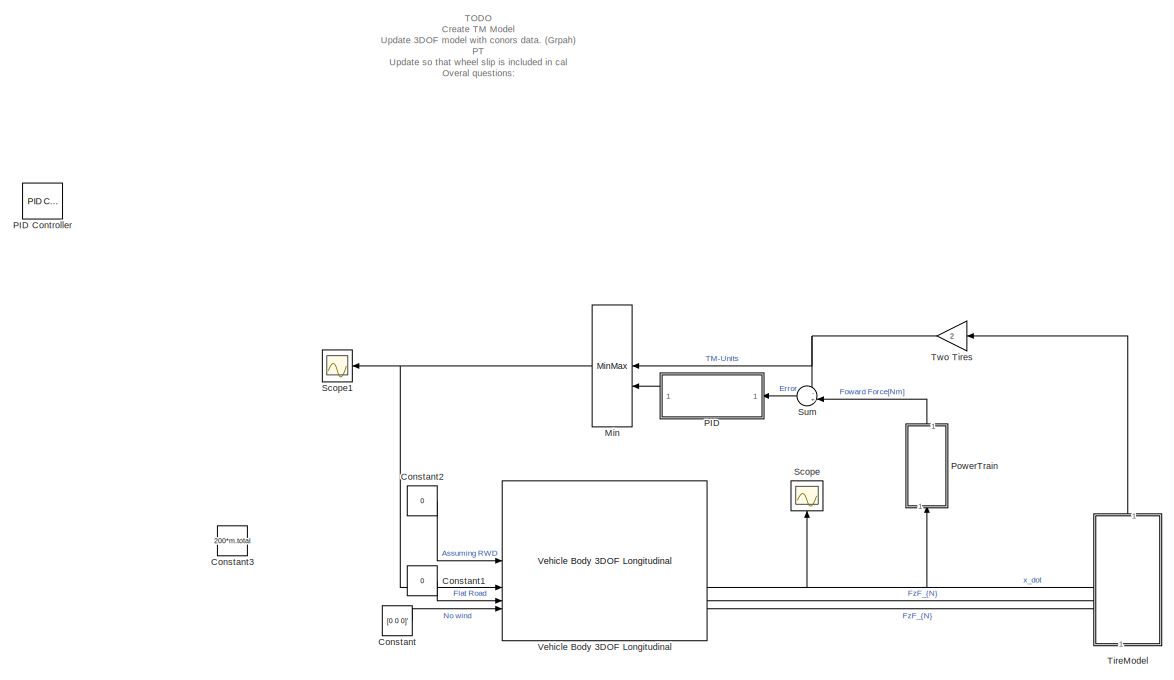
[diagram: root canvas - part 1/2, center side, full height]
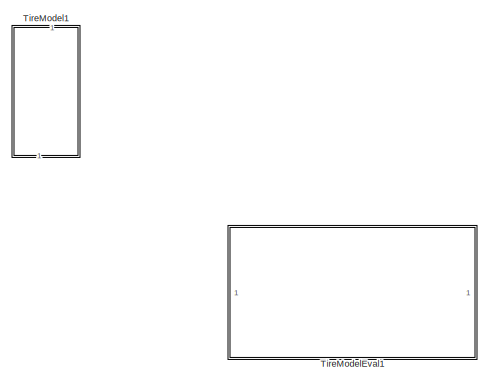
[diagram: root canvas - part 2/2, bottom right region]
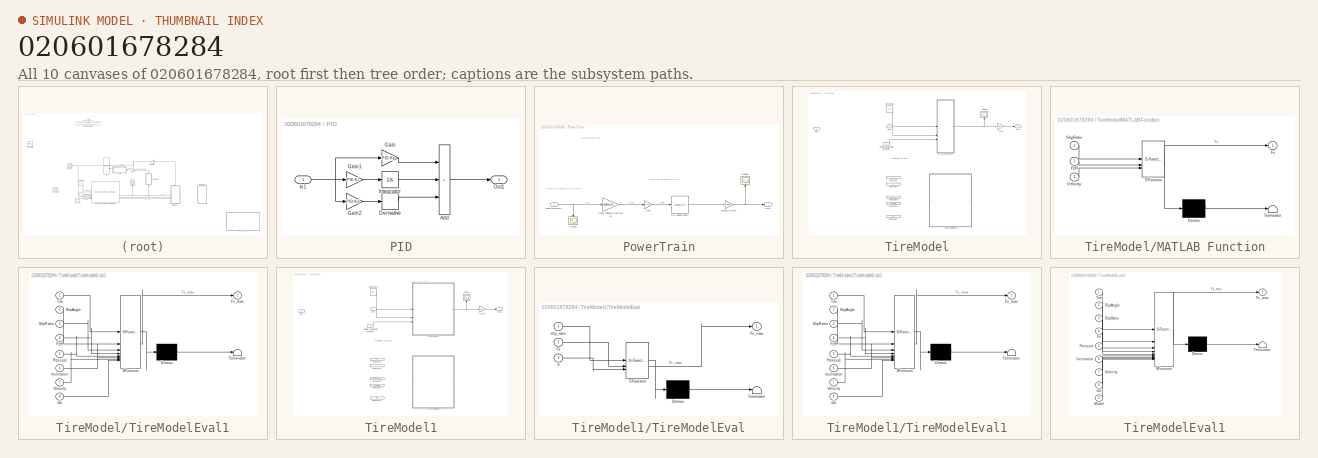
[diagram: thumbnail index - all 10 canvases of the model, root first then tree order]
MODEL slx_020601678284
KIND model
CONFIG AbsTol = auto
CONFIG EnableMultiTasking = off
CONFIG FixedStep = auto
CONFIG MaxStep = auto
CONFIG MinStep = auto
CONFIG PreLoadFcn = Tire = coder.load('Hoosier_R25B_16x75-10x7.mat', 'Tire');\n
CONFIG RelTol = 1e-3
CONFIG SampleTimeConstraint = Unconstrained
CONFIG SolverName = VariableStepAuto
CONFIG StartTime = 0.0
CONFIG StopTime = 20
BLOCK [Constant] Constant
  Value = [0 0 0]'
  VectorParams1D = off
BLOCK [Constant] Constant1
  Value = 0
BLOCK [Constant] Constant2
  Value = 0
BLOCK [Constant] Constant3
  Value = 200*m.total
BLOCK [MinMax] Min
  Inputs = 2
  NameLocation = top
BLOCK [SubSystem] PID
  NameLocation = top
BLOCK [Reference] PID Controller  REF=slpidlib/PID Controller
  Commented = on
  LibrarySourceBlock = simulink/Continuous/PID Controller
  NameLocation = top
  SourceBlock = slpidlib/PID Controller
  SourceType = PID 1dof
BLOCK [Sum] PID/Add
  IconShape = rectangular
  Inputs = +++
BLOCK [Derivative] PID/Derivative
BLOCK [Gain] PID/Gain
  Gain = PID.Kp
BLOCK [Gain] PID/Gain1
  Gain = PID.Ki
BLOCK [Gain] PID/Gain2
  Gain = PID.Kd
BLOCK [Inport] PID/In1
BLOCK [Integrator] PID/Integrator
BLOCK [Outport] PID/Out1
BLOCK [SubSystem] PowerTrain
  NameLocation = right
BLOCK [Lookup_n-D] PowerTrain/1-D Lookup Table
  BreakpointsForDimension1 = torque_vs_RPM_breakpoints
  ExtrapMethod = Clip
  InputPortMap = u0
  InternalRulePriority = Speed
  NumberOfTableDimensions = 1
  RndMeth = Simplest
  Table = torque_vs_RPM_table
  UseLastTableValue = on
BLOCK [Gain] PowerTrain/Gain
  Gain = 1/60
BLOCK [Outport] PowerTrain/Out1
BLOCK [Scope] PowerTrain/Scope1
  Floating = off
  NameLocation = left
  NumInputPorts = 1
  ScopeSpecificationString = Simulink.scopes.TimeScopeBlockCfg('CurrentConfiguration', extmgr.ConfigurationSet(extmgr.Configuration('Core','General UI',true),extmgr.Configuration('Core','Source UI',true),extmgr.Configuration('Sources','WiredSimulink',true,'DataLoggingVariableName','ScopeData2'),extmgr.Configuration('Visuals','Time Domain',true,'SerializedDisplays',{struct('MinYLimReal','-31.05691','MaxYLimReal','279.51221','Y...<+1461ch>
BLOCK [Scope] PowerTrain/Scope2
  Floating = off
  NameLocation = right
  NumInputPorts = 1
  ScopeSpecificationString = Simulink.scopes.TimeScopeBlockCfg('CurrentConfiguration', extmgr.ConfigurationSet(extmgr.Configuration('Core','General UI',true),extmgr.Configuration('Core','Source UI',true),extmgr.Configuration('Sources','WiredSimulink',true,'DataLoggingVariableName','ScopeData4'),extmgr.Configuration('Visuals','Time Domain',true,'SerializedDisplays',{struct('MinYLimReal','333.07087','MaxYLimReal','533.07087','Y...<+1777ch>
BLOCK [Gain] PowerTrain/linear speed//circumfrence
  Gain = 1/wheel.circumfrence
BLOCK [Gain] PowerTrain/torque to force
  Gain = 1/(wheel.diameter*2)
BLOCK [Inport] PowerTrain/vehicle_velocity
BLOCK [Scope] Scope
  Floating = off
  NameLocation = right
  NumInputPorts = 1
  ScopeSpecificationString = Simulink.scopes.TimeScopeBlockCfg('CurrentConfiguration', extmgr.ConfigurationSet(extmgr.Configuration('Core','General UI',true),extmgr.Configuration('Core','Source UI',true),extmgr.Configuration('Sources','WiredSimulink',true),extmgr.Configuration('Visuals','Time Domain',true,'SerializedDisplays',{struct('MinYLimReal','-31.05691','MaxYLimReal','279.51221','YLabelReal','','MinYLimMag','0.00000','M...<+1712ch>
BLOCK [Scope] Scope1
  Floating = off
  NameLocation = top
  NumInputPorts = 1
  ScopeSpecificationString = Simulink.scopes.TimeScopeBlockCfg('CurrentConfiguration', extmgr.ConfigurationSet(extmgr.Configuration('Core','General UI',true),extmgr.Configuration('Core','Source UI',true),extmgr.Configuration('Sources','WiredSimulink',true,'DataLoggingVariableName','ScopeData3'),extmgr.Configuration('Visuals','Time Domain',true,'SerializedDisplays',{struct('MinYLimReal','-10','MaxYLimReal','10','YLabelReal',''...<+849ch>
BLOCK [Sum] Sum
  Inputs = -+|
  NameLocation = top
BLOCK [SubSystem] TireModel
  NameLocation = right
  PortSchema = {"entries":[{"content":{"sides":[{"content":{},"type":"ConnectorPlacement.EquallySpacedRectSide","uuid":"d4bb879a-aa81-4ea3-92ac-3983b0597440"},{"content":{"connectorIds":["Out1"],"side":"RIGHT"},"type":"ConnectorPlacement.EquallySpacedRectSide","uuid":"22ca24d5-9db3-466e-aaa4-c38196519f13"},{"content":{"connectorIds":["In1","In2","In3"],"side":"TOP"},"type":"ConnectorPlacement.EquallySpacedRectSi...<+235ch>
BLOCK [Constant] TireModel/Constant
  Commented = on
BLOCK [Constant] TireModel/Constant1
  Commented = on
BLOCK [Constant] TireModel/Constant2
  Commented = on
  Value = Pressure
BLOCK [Constant] TireModel/Constant3
  Commented = on
  Value = Inclination
BLOCK [Constant] TireModel/Constant4
  Commented = on
  Value = Idx
BLOCK [Constant] TireModel/Constant5
  Value = 0.1
BLOCK [Inport] TireModel/FzF
  Port = 2
BLOCK [Inport] TireModel/FzR
  NameLocation = left
BLOCK [Gain] TireModel/Gain
  Gain = 1/(i_g*drive_train_eff)
BLOCK [SubSystem] TireModel/MATLAB Function
  ErrorFcn = Stateflow.Translate.translate
  PermitHierarchicalResolution = ExplicitOnly
  SFBlockType = MATLAB Function
  TreatAsAtomicUnit = on
BLOCK [Demux] TireModel/MATLAB Function/ Demux 
  Outputs = 1
BLOCK [S-Function] TireModel/MATLAB Function/ SFunction 
  EnableBusSupport = on
  FunctionName = sf_sfun
  PortCounts = [3 2]
  SFcnIsStateOwnerBlock = off
  SFunctionDeploymentMode = off
  Tag = Stateflow S-Function 2
BLOCK [Terminator] TireModel/MATLAB Function/ Terminator 
BLOCK [Outport] TireModel/MATLAB Function/Fx
BLOCK [Inport] TireModel/MATLAB Function/FzR
  Port = 2
BLOCK [Inport] TireModel/MATLAB Function/SlipRatio
BLOCK [Inport] TireModel/MATLAB Function/Velocity
  Port = 3
BLOCK [Outport] TireModel/Out1
BLOCK [Scope] TireModel/Scope
  Floating = off
  NameLocation = right
  NumInputPorts = 1
  ScopeSpecificationString = Simulink.scopes.TimeScopeBlockCfg('CurrentConfiguration', extmgr.ConfigurationSet(extmgr.Configuration('Core','General UI',true),extmgr.Configuration('Core','Source UI',true),extmgr.Configuration('Sources','WiredSimulink',true,'DataLoggingVariableName','ScopeData1'),extmgr.Configuration('Visuals','Time Domain',true),extmgr.Configuration('Tools','Plot Navigation',true),extmgr.Configuration('Tools',...<+40ch>
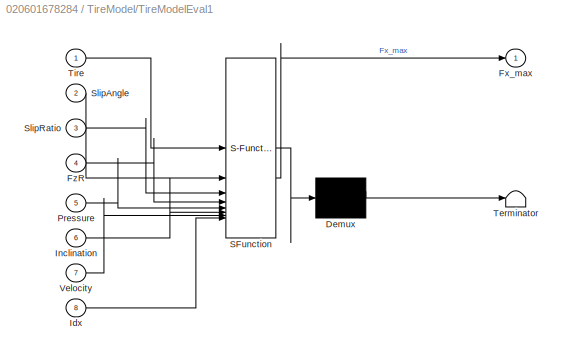
BLOCK [SubSystem] TireModel/TireModelEval1
  Commented = on
  ErrorFcn = Stateflow.Translate.translate
  PermitHierarchicalResolution = ExplicitOnly
  SFBlockType = MATLAB Function
  TreatAsAtomicUnit = on
BLOCK [Demux] TireModel/TireModelEval1/ Demux 
  Outputs = 1
BLOCK [S-Function] TireModel/TireModelEval1/ SFunction 
  EnableBusSupport = on
  FunctionName = sf_sfun
  PortCounts = [8 2]
  SFcnIsStateOwnerBlock = off
  SFunctionDeploymentMode = off
  Tag = Stateflow S-Function 1
BLOCK [Terminator] TireModel/TireModelEval1/ Terminator 
BLOCK [Outport] TireModel/TireModelEval1/Fx_max
BLOCK [Inport] TireModel/TireModelEval1/FzR
  Port = 4
BLOCK [Inport] TireModel/TireModelEval1/Idx
  Port = 8
BLOCK [Inport] TireModel/TireModelEval1/Inclination
  Port = 6
BLOCK [Inport] TireModel/TireModelEval1/Pressure
  Port = 5
BLOCK [Inport] TireModel/TireModelEval1/SlipAngle
  Port = 2
BLOCK [Inport] TireModel/TireModelEval1/SlipRatio
  Port = 3
BLOCK [Inport] TireModel/TireModelEval1/Tire
BLOCK [Inport] TireModel/TireModelEval1/Velocity
  Port = 7
BLOCK [Inport] TireModel/Vehicle_Longitudinal_Velocity
  NameLocation = left
  Port = 3
BLOCK [SubSystem] TireModel1
  Commented = on
  NameLocation = right
  PortSchema = {"entries":[{"content":{"sides":[{"content":{},"type":"ConnectorPlacement.EquallySpacedRectSide","uuid":"d4bb879a-aa81-4ea3-92ac-3983b0597440"},{"content":{"connectorIds":["Out1"],"side":"RIGHT"},"type":"ConnectorPlacement.EquallySpacedRectSide","uuid":"22ca24d5-9db3-466e-aaa4-c38196519f13"},{"content":{"connectorIds":["In1","In2","In3"],"side":"TOP"},"type":"ConnectorPlacement.EquallySpacedRectSi...<+235ch>
BLOCK [Constant] TireModel1/Constant
  Commented = on
BLOCK [Constant] TireModel1/Constant1
  Commented = on
BLOCK [Constant] TireModel1/Constant2
  Commented = on
  Value = Pressure
BLOCK [Constant] TireModel1/Constant3
  Commented = on
  Value = Inclination
BLOCK [Constant] TireModel1/Constant4
  Commented = on
  Value = Idx
BLOCK [Constant] TireModel1/Constant5
  Value = 0.1
BLOCK [Inport] TireModel1/FzF
  Port = 2
BLOCK [Inport] TireModel1/FzR
  NameLocation = left
BLOCK [Gain] TireModel1/Gain
  Gain = 1/(i_g*drive_train_eff)
BLOCK [Outport] TireModel1/Out1
BLOCK [Scope] TireModel1/Scope
  Floating = off
  NameLocation = right
  NumInputPorts = 1
  ScopeSpecificationString = Simulink.scopes.TimeScopeBlockCfg('CurrentConfiguration', extmgr.ConfigurationSet(extmgr.Configuration('Core','General UI',true),extmgr.Configuration('Core','Source UI',true),extmgr.Configuration('Sources','WiredSimulink',true,'DataLoggingVariableName','ScopeData1'),extmgr.Configuration('Visuals','Time Domain',true),extmgr.Configuration('Tools','Plot Navigation',true),extmgr.Configuration('Tools',...<+40ch>
BLOCK [SubSystem] TireModel1/TireModelEval
  ErrorFcn = Stateflow.Translate.translate
  PermitHierarchicalResolution = ExplicitOnly
  SFBlockType = MATLAB Function
  TreatAsAtomicUnit = on
BLOCK [Demux] TireModel1/TireModelEval/ Demux 
  Outputs = 1
BLOCK [S-Function] TireModel1/TireModelEval/ SFunction 
  EnableBusSupport = on
  FunctionName = sf_sfun
  PortCounts = [3 2]
  SFcnIsStateOwnerBlock = off
  SFunctionDeploymentMode = off
  Tag = Stateflow S-Function 4
BLOCK [Terminator] TireModel1/TireModelEval/ Terminator 
BLOCK [Outport] TireModel1/TireModelEval/Fx_max
BLOCK [Inport] TireModel1/TireModelEval/Fz
  Port = 2
BLOCK [Inport] TireModel1/TireModelEval/V
  Port = 3
BLOCK [Inport] TireModel1/TireModelEval/slip_ratio
BLOCK [SubSystem] TireModel1/TireModelEval1
  Commented = on
  ErrorFcn = Stateflow.Translate.translate
  PermitHierarchicalResolution = ExplicitOnly
  SFBlockType = MATLAB Function
  TreatAsAtomicUnit = on
BLOCK [Demux] TireModel1/TireModelEval1/ Demux 
  Outputs = 1
BLOCK [S-Function] TireModel1/TireModelEval1/ SFunction 
  EnableBusSupport = on
  FunctionName = sf_sfun
  PortCounts = [8 2]
  SFcnIsStateOwnerBlock = off
  SFunctionDeploymentMode = off
  Tag = Stateflow S-Function 5
BLOCK [Terminator] TireModel1/TireModelEval1/ Terminator 
BLOCK [Outport] TireModel1/TireModelEval1/Fx_max
BLOCK [Inport] TireModel1/TireModelEval1/FzR
  Port = 4
BLOCK [Inport] TireModel1/TireModelEval1/Idx
  Port = 8
BLOCK [Inport] TireModel1/TireModelEval1/Inclination
  Port = 6
BLOCK [Inport] TireModel1/TireModelEval1/Pressure
  Port = 5
BLOCK [Inport] TireModel1/TireModelEval1/SlipAngle
  Port = 2
BLOCK [Inport] TireModel1/TireModelEval1/SlipRatio
  Port = 3
BLOCK [Inport] TireModel1/TireModelEval1/Tire
BLOCK [Inport] TireModel1/TireModelEval1/Velocity
  Port = 7
BLOCK [Inport] TireModel1/Vehicle_Longitudinal_Velocity
  NameLocation = left
  Port = 3
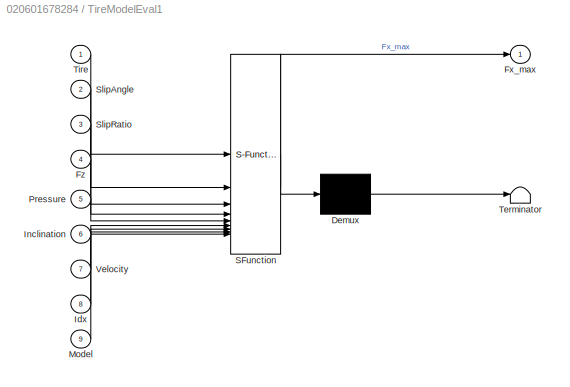
BLOCK [SubSystem] TireModelEval1
  Commented = on
  ErrorFcn = Stateflow.Translate.translate
  PermitHierarchicalResolution = ExplicitOnly
  SFBlockType = MATLAB Function
  TreatAsAtomicUnit = on
BLOCK [Demux] TireModelEval1/ Demux 
  Outputs = 1
BLOCK [S-Function] TireModelEval1/ SFunction 
  EnableBusSupport = on
  FunctionName = sf_sfun
  PortCounts = [9 2]
  SFcnIsStateOwnerBlock = off
  SFunctionDeploymentMode = off
  Tag = Stateflow S-Function 3
BLOCK [Terminator] TireModelEval1/ Terminator 
BLOCK [Outport] TireModelEval1/Fx_max
BLOCK [Inport] TireModelEval1/Fz
  Port = 4
BLOCK [Inport] TireModelEval1/Idx
  Port = 8
BLOCK [Inport] TireModelEval1/Inclination
  Port = 6
BLOCK [Inport] TireModelEval1/Model
  Port = 9
BLOCK [Inport] TireModelEval1/Pressure
  Port = 5
BLOCK [Inport] TireModelEval1/SlipAngle
  Port = 2
BLOCK [Inport] TireModelEval1/SlipRatio
  Port = 3
BLOCK [Inport] TireModelEval1/Tire
BLOCK [Inport] TireModelEval1/Velocity
  Port = 7
BLOCK [Gain] Two Tires
  Gain = 2
  NameLocation = top
BLOCK [Reference] Vehicle Body 3DOF Longitudinal  REF=autolibshared/Vehicle Body 3DOF Longitudinal
  LibrarySourceBlock = vehdynlibeom/Vehicle Body 3DOF Longitudinal
  SourceBlock = autolibshared/Vehicle Body 3DOF Longitudinal
  SourceType = Vehicle Body 3DOF Longitudinal
ANNOTATION (root): TODO Create TM Model Update 3DOF model with conors data. (Grpah) PT Update so that wheel slip is included in cal Overal questions: Since we are just aming for maximal force applied, does this model still work? Or do we want to model for a targeted veloicty Its 3 am quesiton: why do we have a PID and not just take min of TM vs PT Figure out unit conversions so that the min(PT,TM) makes sense Rescal...<+171ch>
ANNOTATION PowerTrain: Not using slip yet
ANNOTATION PowerTrain: RPM TO TORQUE CALC
ANNOTATION PowerTrain: VHEICLE WHEEL SECTION
ANNOTATION TireModel: Preloading Tire Data
ANNOTATION TireModel1: Preloading Tire Data
ANNOTATION TireModel1: whose gonna know
LINE Constant1:1 -> Vehicle Body 3DOF Longitudinal:3
LINE Constant2:1 -> Vehicle Body 3DOF Longitudinal:1
LINE Constant:1 -> Vehicle Body 3DOF Longitudinal:4
NET Min:1 -> Scope1:1, Vehicle Body 3DOF Longitudinal:2
LINE PID/Add:1 -> PID/Out1:1
LINE PID/Derivative:1 -> PID/Add:3
LINE PID/Gain1:1 -> PID/Integrator:1
LINE PID/Gain2:1 -> PID/Derivative:1
LINE PID/Gain:1 -> PID/Add:1
NET PID/In1:1 -> PID/Gain1:1, PID/Gain2:1, PID/Gain:1
LINE PID/Integrator:1 -> PID/Add:2
LINE PID:1 -> Min:2
LINE PowerTrain/1-D Lookup Table:1 -> PowerTrain/torque to force:1
LINE PowerTrain/Gain:1 -> PowerTrain/1-D Lookup Table:1
LINE PowerTrain/linear speed//circumfrence:1 -> PowerTrain/Gain:1
NET PowerTrain/torque to force:1 -> PowerTrain/Out1:1, PowerTrain/Scope2:1
NET PowerTrain/vehicle_velocity:1 -> PowerTrain/Scope1:1, PowerTrain/linear speed//circumfrence:1
LINE PowerTrain:1 -> Sum:2
LINE Sum:1 -> PID:1
LINE TireModel/Constant5:1 -> TireModel/MATLAB Function:1
LINE TireModel/FzR:1 -> TireModel/MATLAB Function:2
LINE TireModel/Gain:1 -> TireModel/Out1:1
NET TireModel/MATLAB Function:1 -> TireModel/Gain:1, TireModel/Scope:1
LINE TireModel/Vehicle_Longitudinal_Velocity:1 -> TireModel/MATLAB Function:3
LINE TireModel1/Constant5:1 -> TireModel1/TireModelEval:1
LINE TireModel1/FzR:1 -> TireModel1/TireModelEval:2
LINE TireModel1/Gain:1 -> TireModel1/Out1:1
NET TireModel1/TireModelEval:1 -> TireModel1/Gain:1, TireModel1/Scope:1
LINE TireModel1/Vehicle_Longitudinal_Velocity:1 -> TireModel1/TireModelEval:3
LINE TireModel:1 -> Two Tires:1
NET Two Tires:1 -> Min:1, Sum:1
NET Vehicle Body 3DOF Longitudinal:2 -> PowerTrain:1, Scope:1, TireModel:3
LINE Vehicle Body 3DOF Longitudinal:3 -> TireModel:2
LINE Vehicle Body 3DOF Longitudinal:4 -> TireModel:1
note: NET lines group one-source signal fan-out (src -> all destinations, sorted); 1:1 wires keep LINE
CHART TireModel/TireModelEval1 states=1 transitions=1
  STATE_LABEL 'eML_blk_kernel()'
  STATE_LABEL "SCRIPT:\nfunction Fx_max = TireTemp(Tire, SlipAngle, SlipRatio, FzR, Pressure, Inclination, Velocity, Idx)\nNormalLoad_Fz=FzR\nModel =struct('Pure','Pacejka','Combined','MNC')\n% Call the ContactPatchLoads function\n[Fx, ~, ~, ~, ~] = ContactPatchLoads(Tire, ...\n                                     SlipAngle, ...\n                                     SlipRatio, ...\n                                     N...<+325ch>"
CHART TireModel/MATLAB Function states=1 transitions=1
  STATE_LABEL 'eML_blk_kernel()'
  STATE_LABEL 'SCRIPT:\nfunction Fx = fcn(SlipRatio, FzR, Velocity)\n    SlipRatio+1\n    FzR+2\n    Velocity+3\n    Fx=100;\nend\n'
CHART TireModelEval1 states=1 transitions=1
  STATE_LABEL 'eML_blk_kernel()'
  STATE_LABEL 'SCRIPT:\nfunction Fx_max = TireModelEval(Tire, SlipAngle, SlipRatio, Fz, Pressure, Inclination, Velocity, Idx, Model)\n\n\n    SlipAngle = 0; % Straight-line acceleration\n    [Fx, ~, ~, ~, ~] = ContactPatchLoads(Tire, SlipAngle, SlipRatio, Fz, Pressure, Inclination, Velocity, Idx, Model);\n    \n    % Output maximum allowable Fx based on slip\n    Fx_max = Fx;\n\n\nend\n'
CHART TireModel1/TireModelEval states=1 transitions=1
  STATE_LABEL 'eML_blk_kernel()'
  STATE_LABEL 'SCRIPT:\nfunction Fx_max = TireModelEval(slip_ratio, Fz, V)\n%#codegen\n\n%{ Safety check for near-zero velocity to avoid unreliable slip_ratio at low speeds\nif abs(V) < 0.1\n    Fx_max = 0;\n    return;\nend\n%}\n\nFx_max=100;\nend\n'
CHART TireModel1/TireModelEval1 states=1 transitions=1
  STATE_LABEL 'eML_blk_kernel()'
  STATE_LABEL "SCRIPT:\nfunction Fx_max = TireTemp(Tire, SlipAngle, SlipRatio, FzR, Pressure, Inclination, Velocity, Idx)\nNormalLoad_Fz=FzR\nModel =struct('Pure','Pacejka','Combined','MNC')\n% Call the ContactPatchLoads function\n[Fx, ~, ~, ~, ~] = ContactPatchLoads(Tire, ...\n                                     SlipAngle, ...\n                                     SlipRatio, ...\n                                     N...<+325ch>"
CHART  states=0 transitions=0
CHART  states=0 transitions=0
CHART  states=0 transitions=0
CHART  states=0 transitions=0
CHART  states=0 transitions=0
